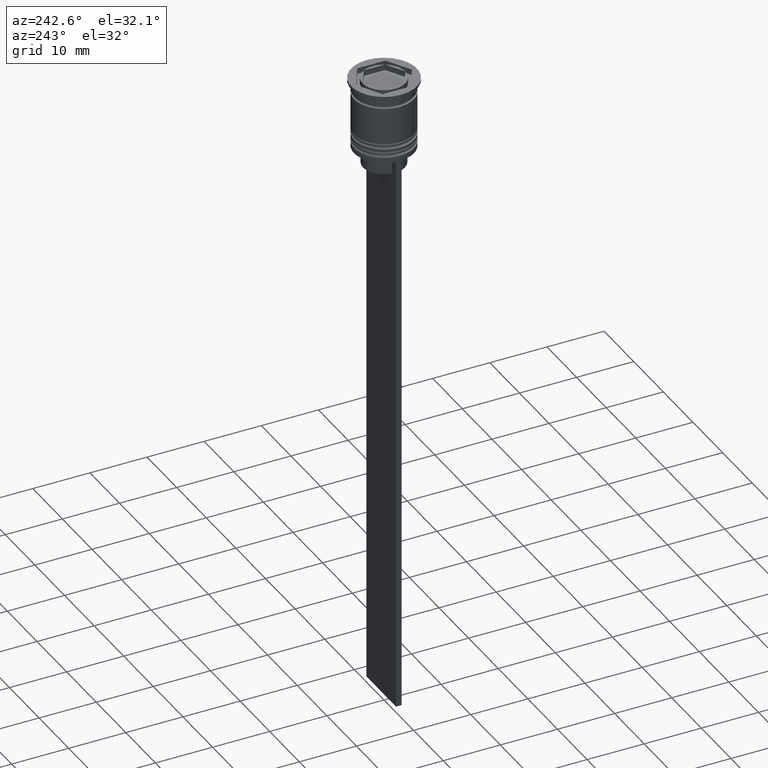
[diagram: clean part render]
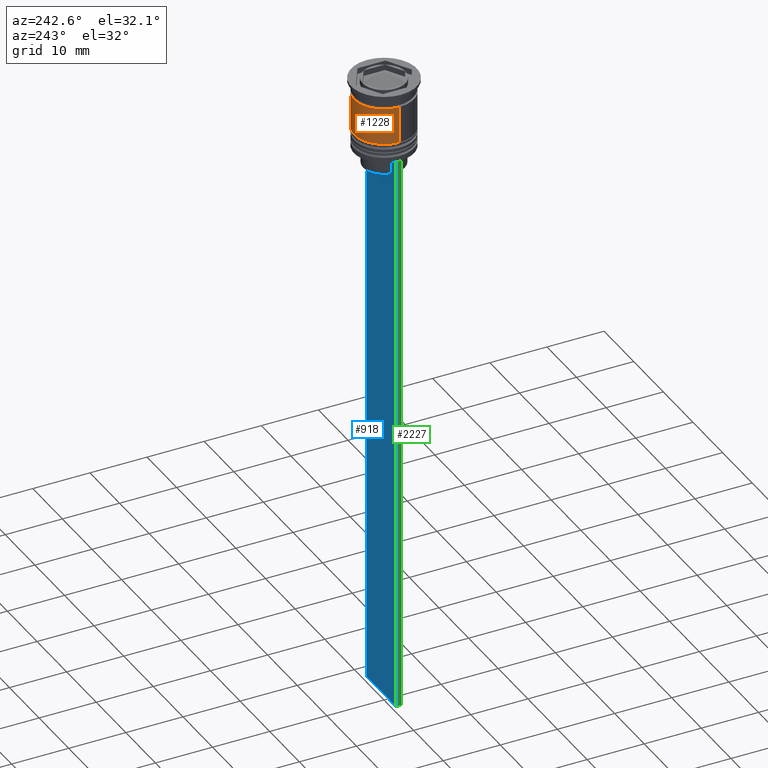
[diagram: same view with three faces highlighted in distinct colors, each labeled with its STEP entity id]
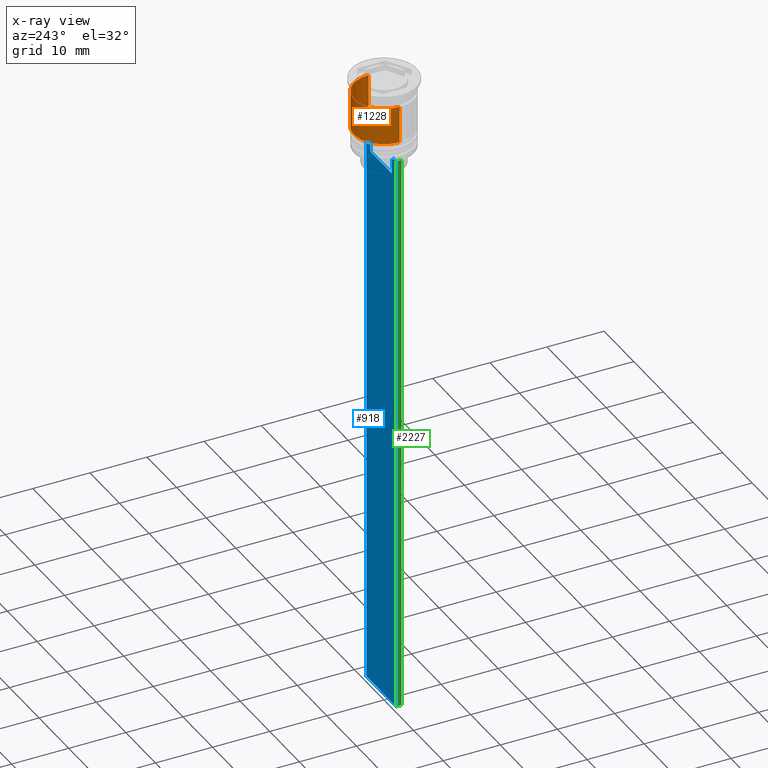
[diagram: x-ray of the same camera — body ghosted, the three highlighted faces saturated]
A machine part, auxiliary view with three faces highlighted in distinct colors.
The next image is the same camera in x-ray (body ghosted, the three faces saturated) — at least one of them is partly hidden behind the body in this view.
Their STEP definitions:

[orange] entity #1228 — the highlighted cylindrical surface (edge-blend (fillet) strip) has radius 5.25 mm, axis along (-0, -0, 1).
#65 = ORIENTED_EDGE ( 'NONE', *, *, #541, .T. ) ;
#80 = DIRECTION ( 'NONE',  ( -0.000000000000000000, -0.000000000000000000, 1.000000000000000000 ) ) ;
#85 = DIRECTION ( 'NONE',  ( -0.000000000000000000, -0.000000000000000000, 1.000000000000000000 ) ) ;
#170 = VERTEX_POINT ( 'NONE', #1875 ) ;
#218 = CARTESIAN_POINT ( 'NONE',  ( 5.250000000000000888, 0.000000000000000000, -9.000000000000001776 ) ) ;
#269 = CARTESIAN_POINT ( 'NONE',  ( 0.000000000000000000, 0.000000000000000000, 0.000000000000000000 ) ) ;
#330 = ORIENTED_EDGE ( 'NONE', *, *, #969, .T. ) ;
#366 = AXIS2_PLACEMENT_3D ( 'NONE', #1217, #1944, #2306 ) ;
#371 = EDGE_CURVE ( 'NONE', #1609, #2090, #1489, .T. ) ;
#378 = LINE ( 'NONE', #2017, #1828 ) ;
#435 = VERTEX_POINT ( 'NONE', #218 ) ;
#503 = CARTESIAN_POINT ( 'NONE',  ( -5.249999999999999112, 6.429395695523604153E-16, -2.499999999999999556 ) ) ;
#541 = EDGE_CURVE ( 'NONE', #435, #170, #1343, .T. ) ;
#592 = CARTESIAN_POINT ( 'NONE',  ( 5.249999999999999112, 0.000000000000000000, -2.499999999999999556 ) ) ;
#785 = DIRECTION ( 'NONE',  ( 1.000000000000000000, 0.000000000000000000, 0.000000000000000000 ) ) ;
#803 = CARTESIAN_POINT ( 'NONE',  ( 5.250000000000000000, 0.000000000000000000, 0.000000000000000000 ) ) ;
#945 = CARTESIAN_POINT ( 'NONE',  ( 0.000000000000000000, 0.000000000000000000, -9.000000000000001776 ) ) ;
#969 = EDGE_CURVE ( 'NONE', #170, #2090, #378, .T. ) ;
#1068 = DIRECTION ( 'NONE',  ( -0.000000000000000000, -0.000000000000000000, 1.000000000000000000 ) ) ;
#1162 = CYLINDRICAL_SURFACE ( 'NONE', #2127, 5.250000000000000000 ) ;
#1193 = AXIS2_PLACEMENT_3D ( 'NONE', #945, #80, #785 ) ;
#1217 = CARTESIAN_POINT ( 'NONE',  ( 0.000000000000000000, 0.000000000000000000, -2.499999999999999556 ) ) ;
#1228 = ADVANCED_FACE ( 'NONE', ( #1885 ), #1162, .T. ) ;
#1343 = CIRCLE ( 'NONE', #1193, 5.250000000000000888 ) ;
#1359 = DIRECTION ( 'NONE',  ( -0.000000000000000000, -0.000000000000000000, 1.000000000000000000 ) ) ;
#1480 = ORIENTED_EDGE ( 'NONE', *, *, #1960, .F. ) ;
#1489 = CIRCLE ( 'NONE', #366, 5.249999999999999112 ) ;
#1521 = DIRECTION ( 'NONE',  ( 1.000000000000000000, 0.000000000000000000, 0.000000000000000000 ) ) ;
#1530 = LINE ( 'NONE', #803, #2170 ) ;
#1609 = VERTEX_POINT ( 'NONE', #592 ) ;
#1828 = VECTOR ( 'NONE', #1068, 1000.000000000000000 ) ;
#1875 = CARTESIAN_POINT ( 'NONE',  ( -5.250000000000000888, 6.429395695523605139E-16, -9.000000000000001776 ) ) ;
#1885 = FACE_OUTER_BOUND ( 'NONE', #2028, .T. ) ;
#1944 = DIRECTION ( 'NONE',  ( -0.000000000000000000, -0.000000000000000000, 1.000000000000000000 ) ) ;
#1960 = EDGE_CURVE ( 'NONE', #435, #1609, #1530, .T. ) ;
#2017 = CARTESIAN_POINT ( 'NONE',  ( -5.250000000000000000, 6.429395695523604153E-16, 0.000000000000000000 ) ) ;
#2028 = EDGE_LOOP ( 'NONE', ( #65, #330, #2068, #1480 ) ) ;
#2068 = ORIENTED_EDGE ( 'NONE', *, *, #371, .F. ) ;
#2090 = VERTEX_POINT ( 'NONE', #503 ) ;
#2127 = AXIS2_PLACEMENT_3D ( 'NONE', #269, #85, #1521 ) ;
#2170 = VECTOR ( 'NONE', #1359, 1000.000000000000000 ) ;
#2306 = DIRECTION ( 'NONE',  ( 1.000000000000000000, 0.000000000000000000, 0.000000000000000000 ) ) ;

[blue] entity #918 — the highlighted planar face has unit normal (0, -1, -0).
#6 = LINE ( 'NONE', #2010, #766 ) ;
#27 = EDGE_CURVE ( 'NONE', #2005, #376, #915, .T. ) ;
#78 = CARTESIAN_POINT ( 'NONE',  ( -4.999999999999999112, 0.4999999999999993339, -12.50000000000000000 ) ) ;
#98 = ORIENTED_EDGE ( 'NONE', *, *, #27, .T. ) ;
#115 = DIRECTION ( 'NONE',  ( 0.000000000000000000, 0.000000000000000000, -1.000000000000000000 ) ) ;
#125 = FACE_OUTER_BOUND ( 'NONE', #174, .T. ) ;
#134 = ORIENTED_EDGE ( 'NONE', *, *, #1220, .T. ) ;
#174 = EDGE_LOOP ( 'NONE', ( #437, #1827, #2342, #1619, #98, #2243, #681, #134, #2268, #1058 ) ) ;
#223 = CARTESIAN_POINT ( 'NONE',  ( 5.000000000000000000, 0.4999999999999991673, -12.50000000000000000 ) ) ;
#227 = CARTESIAN_POINT ( 'NONE',  ( -3.783746449387932920, 0.4999999999999991673, -12.83342999751715752 ) ) ;
#237 = DIRECTION ( 'NONE',  ( -1.000000000000000000, 0.000000000000000000, 0.000000000000000000 ) ) ;
#253 = EDGE_CURVE ( 'NONE', #1801, #2005, #339, .T. ) ;
#273 = B_SPLINE_CURVE_WITH_KNOTS ( 'NONE', 3,
 ( #1427, #1240, #2338, #336 ),
 .UNSPECIFIED., .F., .F.,
 ( 4, 4 ),
 ( 0.01745179617248911533, 0.01816207215777259493 ),
 .UNSPECIFIED. ) ;
#274 = DIRECTION ( 'NONE',  ( 0.000000000000000000, 0.000000000000000000, -1.000000000000000000 ) ) ;
#276 = CARTESIAN_POINT ( 'NONE',  ( 5.000000000000000000, 0.4999999999999991673, -112.5000000000000000 ) ) ;
#308 = VERTEX_POINT ( 'NONE', #1422 ) ;
#328 = VECTOR ( 'NONE', #1115, 1000.000000000000000 ) ;
#336 = CARTESIAN_POINT ( 'NONE',  ( 4.119769411022908834, 0.4999999999999991673, -12.50000000000000000 ) ) ;
#339 = LINE ( 'NONE', #1956, #1986 ) ;
#376 = VERTEX_POINT ( 'NONE', #715 ) ;
#385 = DIRECTION ( 'NONE',  ( 1.000000000000000000, 0.000000000000000000, 0.000000000000000000 ) ) ;
#437 = ORIENTED_EDGE ( 'NONE', *, *, #1382, .T. ) ;
#462 = EDGE_CURVE ( 'NONE', #308, #1063, #749, .T. ) ;
#509 = CARTESIAN_POINT ( 'NONE',  ( 5.000000000000000000, 0.4999999999999991673, -2.450124378879110054 ) ) ;
#567 = CARTESIAN_POINT ( 'NONE',  ( 3.615591237958188042, 0.4999999999999991673, 0.000000000000000000 ) ) ;
#591 = VERTEX_POINT ( 'NONE', #1134 ) ;
#650 = VERTEX_POINT ( 'NONE', #276 ) ;
#661 = DIRECTION ( 'NONE',  ( 0.000000000000000000, -1.000000000000000000, -0.000000000000000000 ) ) ;
#662 = VECTOR ( 'NONE', #237, 1000.000000000000000 ) ;
#667 = CARTESIAN_POINT ( 'NONE',  ( -4.999999999999999112, 0.4999999999999991673, -2.450124378879110054 ) ) ;
#681 = ORIENTED_EDGE ( 'NONE', *, *, #462, .T. ) ;
#698 = VECTOR ( 'NONE', #274, 1000.000000000000000 ) ;
#715 = CARTESIAN_POINT ( 'NONE',  ( 3.615591237958188042, 0.4999999999999991673, -13.00000000000000178 ) ) ;
#724 = VERTEX_POINT ( 'NONE', #78 ) ;
#747 = CARTESIAN_POINT ( 'NONE',  ( -4.119769411022908834, 0.4999999999999991673, -12.50000000000000000 ) ) ;
#749 = LINE ( 'NONE', #1462, #1989 ) ;
#765 = DIRECTION ( 'NONE',  ( 1.000000000000000000, 0.000000000000000000, 0.000000000000000000 ) ) ;
#766 = VECTOR ( 'NONE', #765, 1000.000000000000000 ) ;
#798 = CARTESIAN_POINT ( 'NONE',  ( 5.000000000000000000, 0.4999999999999991673, -2.450124378879110054 ) ) ;
#907 = VERTEX_POINT ( 'NONE', #1026 ) ;
#915 = LINE ( 'NONE', #567, #328 ) ;
#918 = ADVANCED_FACE ( 'NONE', ( #125 ), #2293, .F. ) ;
#940 = VERTEX_POINT ( 'NONE', #1036 ) ;
#978 = EDGE_CURVE ( 'NONE', #907, #1801, #1094, .T. ) ;
#1026 = CARTESIAN_POINT ( 'NONE',  ( -3.615591237958188042, 0.4999999999999991673, -13.00000000000000178 ) ) ;
#1036 = CARTESIAN_POINT ( 'NONE',  ( -4.119769411022908834, 0.4999999999999991673, -12.50000000000000000 ) ) ;
#1058 = ORIENTED_EDGE ( 'NONE', *, *, #2216, .F. ) ;
#1063 = VERTEX_POINT ( 'NONE', #223 ) ;
#1094 = LINE ( 'NONE', #1791, #1705 ) ;
#1115 = DIRECTION ( 'NONE',  ( -0.000000000000000000, -0.000000000000000000, 1.000000000000000000 ) ) ;
#1133 = LINE ( 'NONE', #1643, #662 ) ;
#1134 = CARTESIAN_POINT ( 'NONE',  ( -4.999999999999999112, 0.4999999999999991673, -112.5000000000000000 ) ) ;
#1208 = DIRECTION ( 'NONE',  ( 1.000000000000000000, 0.000000000000000000, 0.000000000000000000 ) ) ;
#1220 = EDGE_CURVE ( 'NONE', #1063, #650, #2050, .T. ) ;
#1229 = EDGE_CURVE ( 'NONE', #376, #308, #273, .T. ) ;
#1240 = CARTESIAN_POINT ( 'NONE',  ( 3.783746406711540722, 0.4999999999999991673, -12.83343003979123509 ) ) ;
#1310 = CARTESIAN_POINT ( 'NONE',  ( -3.615591237958188042, 0.4999999999999991673, -13.00000000000000178 ) ) ;
#1382 = EDGE_CURVE ( 'NONE', #724, #940, #6, .T. ) ;
#1397 = EDGE_CURVE ( 'NONE', #940, #907, #1583, .T. ) ;
#1422 = CARTESIAN_POINT ( 'NONE',  ( 4.119769411022908834, 0.4999999999999991673, -12.50000000000000000 ) ) ;
#1427 = CARTESIAN_POINT ( 'NONE',  ( 3.615591237958188042, 0.4999999999999991673, -13.00000000000000178 ) ) ;
#1462 = CARTESIAN_POINT ( 'NONE',  ( 5.000000000000000000, 0.4999999999999991673, -12.50000000000000000 ) ) ;
#1554 = LINE ( 'NONE', #667, #698 ) ;
#1583 = B_SPLINE_CURVE_WITH_KNOTS ( 'NONE', 3,
 ( #747, #1837, #227, #1310 ),
 .UNSPECIFIED., .F., .F.,
 ( 4, 4 ),
 ( 0.007067514914986626831, 0.007777582239375527978 ),
 .UNSPECIFIED. ) ;
#1586 = AXIS2_PLACEMENT_3D ( 'NONE', #509, #661, #115 ) ;
#1619 = ORIENTED_EDGE ( 'NONE', *, *, #253, .T. ) ;
#1643 = CARTESIAN_POINT ( 'NONE',  ( 5.000000000000000000, 0.4999999999999991673, -112.5000000000000000 ) ) ;
#1653 = CARTESIAN_POINT ( 'NONE',  ( -3.615591237958188486, 0.4999999999999991673, -15.50000000000000000 ) ) ;
#1705 = VECTOR ( 'NONE', #1842, 1000.000000000000000 ) ;
#1785 = EDGE_CURVE ( 'NONE', #650, #591, #1133, .T. ) ;
#1791 = CARTESIAN_POINT ( 'NONE',  ( -3.615591237958188042, 0.4999999999999991673, 0.000000000000000000 ) ) ;
#1801 = VERTEX_POINT ( 'NONE', #1653 ) ;
#1827 = ORIENTED_EDGE ( 'NONE', *, *, #1397, .T. ) ;
#1837 = CARTESIAN_POINT ( 'NONE',  ( -3.951794205566887985, 0.4999999999999991673, -12.66675159355373737 ) ) ;
#1842 = DIRECTION ( 'NONE',  ( 0.000000000000000000, 0.000000000000000000, -1.000000000000000000 ) ) ;
#1913 = CARTESIAN_POINT ( 'NONE',  ( 3.615591237958188486, 0.4999999999999991673, -15.50000000000000000 ) ) ;
#1956 = CARTESIAN_POINT ( 'NONE',  ( 0.000000000000000000, 0.4999999999999991673, -15.50000000000000000 ) ) ;
#1986 = VECTOR ( 'NONE', #1208, 1000.000000000000000 ) ;
#1989 = VECTOR ( 'NONE', #385, 1000.000000000000000 ) ;
#2005 = VERTEX_POINT ( 'NONE', #1913 ) ;
#2010 = CARTESIAN_POINT ( 'NONE',  ( 5.000000000000000000, 0.4999999999999991673, -12.50000000000000000 ) ) ;
#2050 = LINE ( 'NONE', #798, #2051 ) ;
#2051 = VECTOR ( 'NONE', #2238, 1000.000000000000000 ) ;
#2216 = EDGE_CURVE ( 'NONE', #724, #591, #1554, .T. ) ;
#2238 = DIRECTION ( 'NONE',  ( 0.000000000000000000, 0.000000000000000000, -1.000000000000000000 ) ) ;
#2243 = ORIENTED_EDGE ( 'NONE', *, *, #1229, .T. ) ;
#2268 = ORIENTED_EDGE ( 'NONE', *, *, #1785, .T. ) ;
#2293 = PLANE ( 'NONE',  #1586 ) ;
#2338 = CARTESIAN_POINT ( 'NONE',  ( 3.951794168112527927, 0.4999999999999991673, -12.66675163073525923 ) ) ;
#2342 = ORIENTED_EDGE ( 'NONE', *, *, #978, .T. ) ;

[green] entity #2227 — the highlighted planar face has unit normal (-1, 0, 0).
#78 = CARTESIAN_POINT ( 'NONE',  ( -4.999999999999999112, 0.4999999999999993339, -12.50000000000000000 ) ) ;
#157 = LINE ( 'NONE', #1203, #1029 ) ;
#274 = DIRECTION ( 'NONE',  ( 0.000000000000000000, 0.000000000000000000, -1.000000000000000000 ) ) ;
#290 = FACE_OUTER_BOUND ( 'NONE', #1925, .T. ) ;
#392 = EDGE_CURVE ( 'NONE', #485, #1878, #2012, .T. ) ;
#463 = DIRECTION ( 'NONE',  ( -1.000000000000000000, 0.000000000000000000, 0.000000000000000000 ) ) ;
#482 = DIRECTION ( 'NONE',  ( 0.000000000000000000, 0.000000000000000000, 1.000000000000000000 ) ) ;
#485 = VERTEX_POINT ( 'NONE', #2189 ) ;
#489 = ORIENTED_EDGE ( 'NONE', *, *, #705, .F. ) ;
#591 = VERTEX_POINT ( 'NONE', #1134 ) ;
#627 = VECTOR ( 'NONE', #1644, 1000.000000000000000 ) ;
#667 = CARTESIAN_POINT ( 'NONE',  ( -4.999999999999999112, 0.4999999999999991673, -2.450124378879110054 ) ) ;
#689 = ORIENTED_EDGE ( 'NONE', *, *, #880, .F. ) ;
#698 = VECTOR ( 'NONE', #274, 1000.000000000000000 ) ;
#705 = EDGE_CURVE ( 'NONE', #1878, #591, #780, .T. ) ;
#724 = VERTEX_POINT ( 'NONE', #78 ) ;
#759 = ORIENTED_EDGE ( 'NONE', *, *, #2216, .T. ) ;
#780 = LINE ( 'NONE', #1309, #2237 ) ;
#801 = DIRECTION ( 'NONE',  ( 0.000000000000000000, 1.000000000000000000, 0.000000000000000000 ) ) ;
#880 = EDGE_CURVE ( 'NONE', #724, #485, #157, .T. ) ;
#1029 = VECTOR ( 'NONE', #1564, 1000.000000000000000 ) ;
#1134 = CARTESIAN_POINT ( 'NONE',  ( -4.999999999999999112, 0.4999999999999991673, -112.5000000000000000 ) ) ;
#1203 = CARTESIAN_POINT ( 'NONE',  ( -4.999999999999999112, -0.5000000000000008882, -12.50000000000000000 ) ) ;
#1213 = PLANE ( 'NONE',  #1225 ) ;
#1225 = AXIS2_PLACEMENT_3D ( 'NONE', #2302, #463, #482 ) ;
#1268 = CARTESIAN_POINT ( 'NONE',  ( -4.999999999999999112, -0.5000000000000008882, -2.450124378879110054 ) ) ;
#1309 = CARTESIAN_POINT ( 'NONE',  ( -4.999999999999999112, -0.5000000000000008882, -112.5000000000000000 ) ) ;
#1554 = LINE ( 'NONE', #667, #698 ) ;
#1564 = DIRECTION ( 'NONE',  ( 0.000000000000000000, -1.000000000000000000, 0.000000000000000000 ) ) ;
#1644 = DIRECTION ( 'NONE',  ( 0.000000000000000000, 0.000000000000000000, -1.000000000000000000 ) ) ;
#1878 = VERTEX_POINT ( 'NONE', #2045 ) ;
#1925 = EDGE_LOOP ( 'NONE', ( #689, #759, #489, #2137 ) ) ;
#2012 = LINE ( 'NONE', #1268, #627 ) ;
#2045 = CARTESIAN_POINT ( 'NONE',  ( -4.999999999999999112, -0.5000000000000008882, -112.5000000000000000 ) ) ;
#2137 = ORIENTED_EDGE ( 'NONE', *, *, #392, .F. ) ;
#2189 = CARTESIAN_POINT ( 'NONE',  ( -4.999999999999999112, -0.5000000000000008882, -12.50000000000000000 ) ) ;
#2216 = EDGE_CURVE ( 'NONE', #724, #591, #1554, .T. ) ;
#2227 = ADVANCED_FACE ( 'NONE', ( #290 ), #1213, .T. ) ;
#2237 = VECTOR ( 'NONE', #801, 1000.000000000000000 ) ;
#2302 = CARTESIAN_POINT ( 'NONE',  ( -4.999999999999999112, -0.5000000000000008882, -2.450124378879110054 ) ) ;